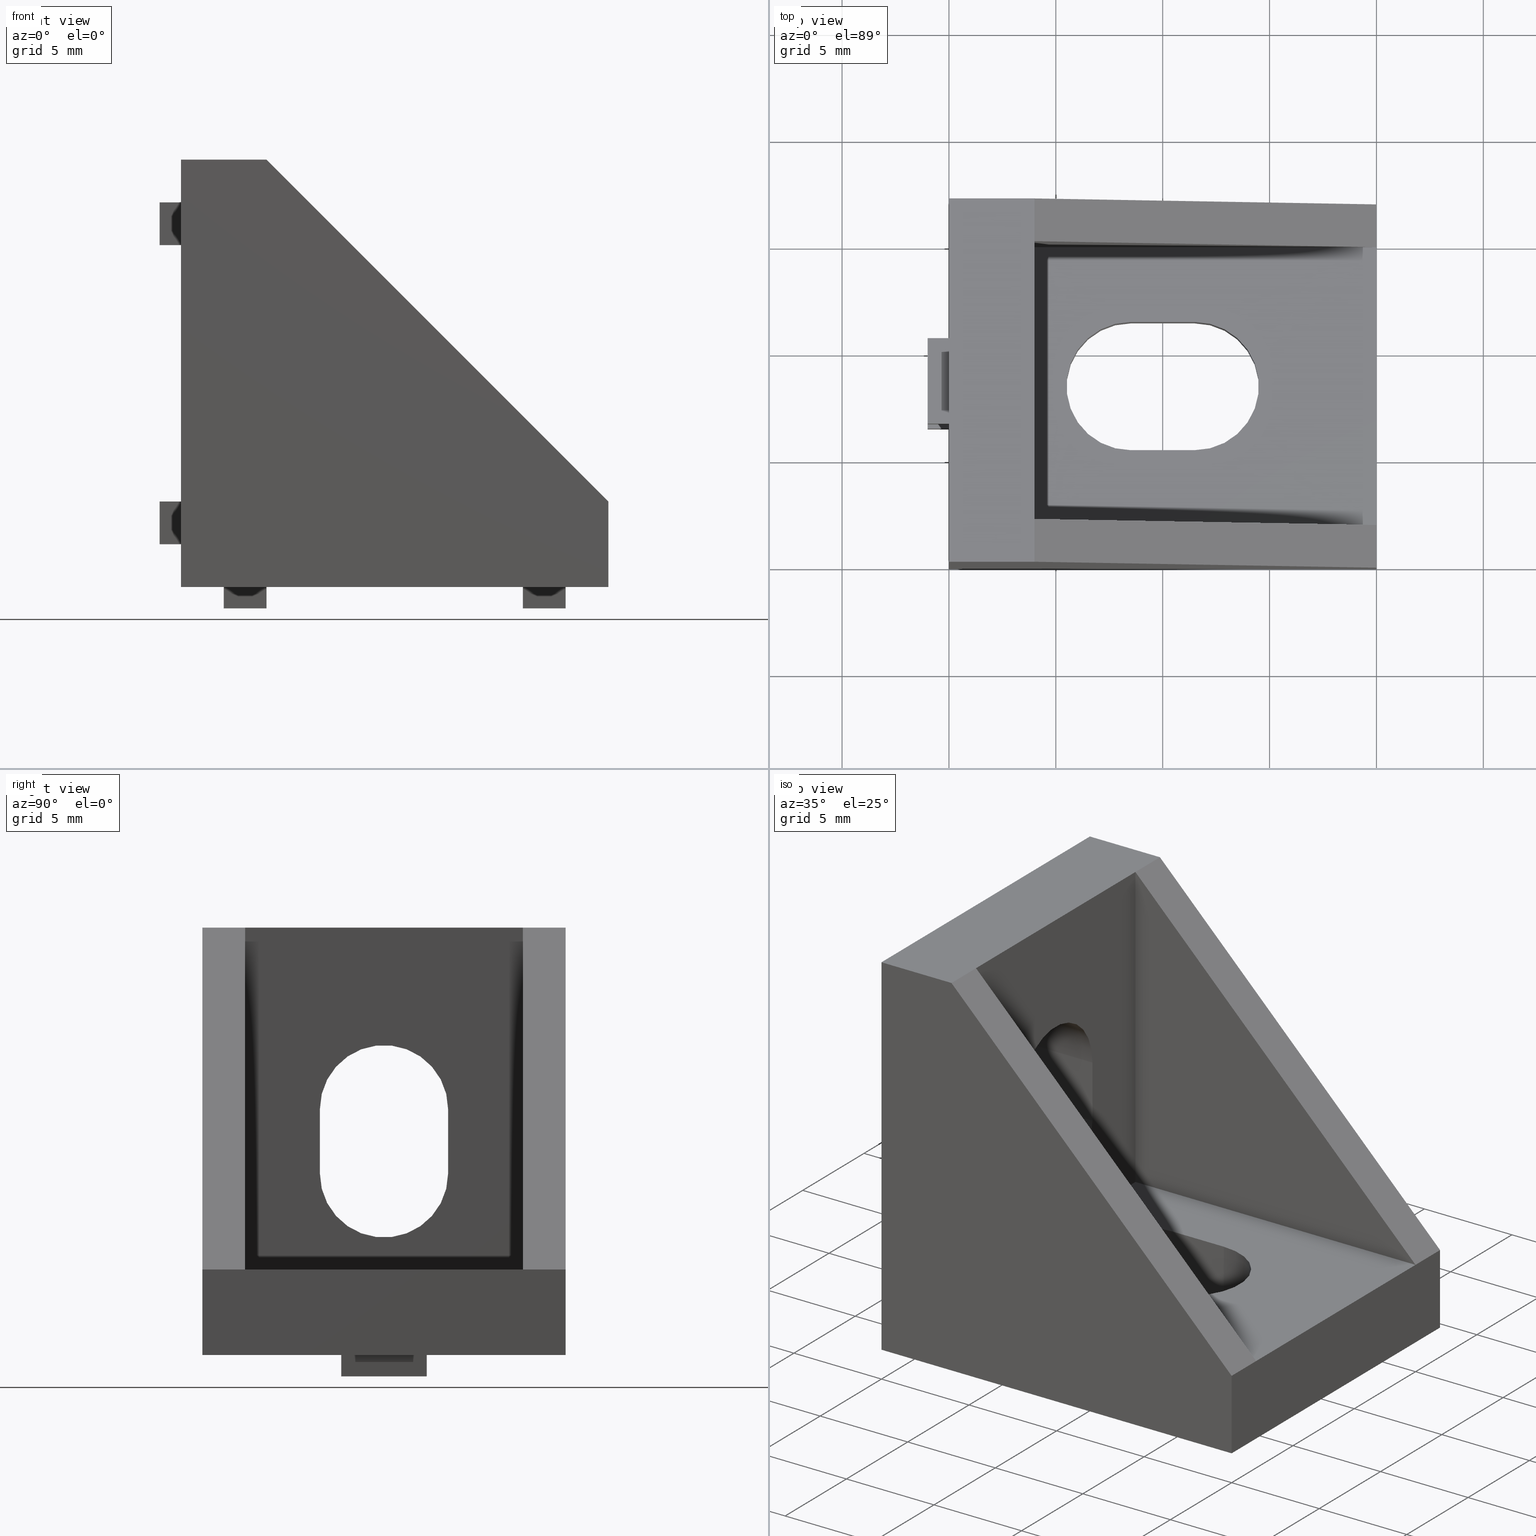
[diagram: canonical four-view strip — front | top / right | iso, engineering-drawing reading convention]
A machine part, canonical four-view strip (front | top / right | iso — engineering-drawing reading convention). The complete STEP part file that produces these views, byte-faithful:
ISO-10303-21;
HEADER;
/* Generated by software containing ST-Developer
 * from STEP Tools, Inc. (www.steptools.com) 
 */

FILE_DESCRIPTION(
/* description */ (''),
/* implementation_level */ '2;1');

FILE_NAME(
/* name */ 'HBLFSN5.step',
/* time_stamp */ '2024-09-27T19:36:49+02:00',
/* author */ (''),
/* organization */ (''),
/* preprocessor_version */ 'ST-DEVELOPER v20',
/* originating_system */ 'Autodesk Translation Framework v13.20.0.188',

/* authorisation */ '');

FILE_SCHEMA (('AUTOMOTIVE_DESIGN { 1 0 10303 214 3 1 1 }'));
ENDSEC;

DATA;
#10=MECHANICAL_DESIGN_GEOMETRIC_PRESENTATION_REPRESENTATION('',(#13),#1193);
#11=SHAPE_REPRESENTATION_RELATIONSHIP('SRR','None',#1200,#12);
#12=ADVANCED_BREP_SHAPE_REPRESENTATION('',(#14),#1192);
#13=STYLED_ITEM('',(#1209),#14);
#14=MANIFOLD_SOLID_BREP('Body1',#737);
#15=FACE_BOUND('',#106,.T.);
#16=FACE_BOUND('',#110,.T.);
#17=FACE_BOUND('',#112,.T.);
#18=FACE_BOUND('',#113,.T.);
#19=FACE_BOUND('',#114,.T.);
#20=FACE_BOUND('',#118,.T.);
#21=FACE_BOUND('',#119,.T.);
#22=FACE_BOUND('',#120,.T.);
#23=CIRCLE('',#772,3.);
#24=CIRCLE('',#773,3.);
#25=CIRCLE('',#776,3.);
#26=CIRCLE('',#777,3.);
#27=CIRCLE('',#780,3.);
#28=CIRCLE('',#781,3.);
#29=CIRCLE('',#784,3.);
#30=CIRCLE('',#785,3.);
#31=CYLINDRICAL_SURFACE('',#771,3.);
#32=CYLINDRICAL_SURFACE('',#775,3.);
#33=CYLINDRICAL_SURFACE('',#779,3.);
#34=CYLINDRICAL_SURFACE('',#783,3.);
#35=FACE_OUTER_BOUND('',#75,.T.);
#36=FACE_OUTER_BOUND('',#76,.T.);
#37=FACE_OUTER_BOUND('',#77,.T.);
#38=FACE_OUTER_BOUND('',#78,.T.);
#39=FACE_OUTER_BOUND('',#79,.T.);
#40=FACE_OUTER_BOUND('',#80,.T.);
#41=FACE_OUTER_BOUND('',#81,.T.);
#42=FACE_OUTER_BOUND('',#82,.T.);
#43=FACE_OUTER_BOUND('',#83,.T.);
#44=FACE_OUTER_BOUND('',#84,.T.);
#45=FACE_OUTER_BOUND('',#85,.T.);
#46=FACE_OUTER_BOUND('',#86,.T.);
#47=FACE_OUTER_BOUND('',#87,.T.);
#48=FACE_OUTER_BOUND('',#88,.T.);
#49=FACE_OUTER_BOUND('',#89,.T.);
#50=FACE_OUTER_BOUND('',#90,.T.);
#51=FACE_OUTER_BOUND('',#91,.T.);
#52=FACE_OUTER_BOUND('',#92,.T.);
#53=FACE_OUTER_BOUND('',#93,.T.);
#54=FACE_OUTER_BOUND('',#94,.T.);
#55=FACE_OUTER_BOUND('',#95,.T.);
#56=FACE_OUTER_BOUND('',#96,.T.);
#57=FACE_OUTER_BOUND('',#97,.T.);
#58=FACE_OUTER_BOUND('',#98,.T.);
#59=FACE_OUTER_BOUND('',#99,.T.);
#60=FACE_OUTER_BOUND('',#100,.T.);
#61=FACE_OUTER_BOUND('',#101,.T.);
#62=FACE_OUTER_BOUND('',#102,.T.);
#63=FACE_OUTER_BOUND('',#103,.T.);
#64=FACE_OUTER_BOUND('',#104,.T.);
#65=FACE_OUTER_BOUND('',#105,.T.);
#66=FACE_OUTER_BOUND('',#107,.T.);
#67=FACE_OUTER_BOUND('',#108,.T.);
#68=FACE_OUTER_BOUND('',#109,.T.);
#69=FACE_OUTER_BOUND('',#111,.T.);
#70=FACE_OUTER_BOUND('',#115,.T.);
#71=FACE_OUTER_BOUND('',#116,.T.);
#72=FACE_OUTER_BOUND('',#117,.T.);
#73=FACE_OUTER_BOUND('',#121,.T.);
#74=FACE_OUTER_BOUND('',#122,.T.);
#75=EDGE_LOOP('',(#465,#466,#467,#468));
#76=EDGE_LOOP('',(#469,#470,#471,#472));
#77=EDGE_LOOP('',(#473,#474,#475,#476));
#78=EDGE_LOOP('',(#477,#478,#479,#480));
#79=EDGE_LOOP('',(#481,#482,#483,#484));
#80=EDGE_LOOP('',(#485,#486,#487,#488));
#81=EDGE_LOOP('',(#489,#490,#491,#492));
#82=EDGE_LOOP('',(#493,#494,#495,#496));
#83=EDGE_LOOP('',(#497,#498,#499,#500));
#84=EDGE_LOOP('',(#501,#502,#503,#504));
#85=EDGE_LOOP('',(#505,#506,#507,#508));
#86=EDGE_LOOP('',(#509,#510,#511,#512));
#87=EDGE_LOOP('',(#513,#514,#515,#516));
#88=EDGE_LOOP('',(#517,#518,#519,#520));
#89=EDGE_LOOP('',(#521,#522,#523,#524));
#90=EDGE_LOOP('',(#525,#526,#527,#528));
#91=EDGE_LOOP('',(#529,#530,#531,#532));
#92=EDGE_LOOP('',(#533,#534,#535,#536));
#93=EDGE_LOOP('',(#537,#538,#539,#540));
#94=EDGE_LOOP('',(#541,#542,#543,#544));
#95=EDGE_LOOP('',(#545,#546,#547,#548));
#96=EDGE_LOOP('',(#549,#550,#551,#552));
#97=EDGE_LOOP('',(#553,#554,#555,#556));
#98=EDGE_LOOP('',(#557,#558,#559,#560));
#99=EDGE_LOOP('',(#561,#562,#563,#564));
#100=EDGE_LOOP('',(#565,#566,#567,#568));
#101=EDGE_LOOP('',(#569,#570,#571,#572));
#102=EDGE_LOOP('',(#573,#574,#575,#576));
#103=EDGE_LOOP('',(#577,#578,#579,#580));
#104=EDGE_LOOP('',(#581,#582,#583));
#105=EDGE_LOOP('',(#584,#585,#586,#587));
#106=EDGE_LOOP('',(#588,#589,#590,#591));
#107=EDGE_LOOP('',(#592,#593,#594,#595));
#108=EDGE_LOOP('',(#596,#597,#598));
#109=EDGE_LOOP('',(#599,#600,#601,#602));
#110=EDGE_LOOP('',(#603,#604,#605,#606));
#111=EDGE_LOOP('',(#607,#608,#609,#610));
#112=EDGE_LOOP('',(#611,#612,#613,#614));
#113=EDGE_LOOP('',(#615,#616,#617,#618));
#114=EDGE_LOOP('',(#619,#620,#621,#622));
#115=EDGE_LOOP('',(#623,#624,#625,#626,#627,#628));
#116=EDGE_LOOP('',(#629,#630,#631,#632,#633,#634));
#117=EDGE_LOOP('',(#635,#636,#637,#638));
#118=EDGE_LOOP('',(#639,#640,#641,#642));
#119=EDGE_LOOP('',(#643,#644,#645,#646));
#120=EDGE_LOOP('',(#647,#648,#649,#650));
#121=EDGE_LOOP('',(#651,#652,#653,#654,#655));
#122=EDGE_LOOP('',(#656,#657,#658,#659,#660));
#123=LINE('',#991,#213);
#124=LINE('',#993,#214);
#125=LINE('',#995,#215);
#126=LINE('',#996,#216);
#127=LINE('',#1000,#217);
#128=LINE('',#1002,#218);
#129=LINE('',#1004,#219);
#130=LINE('',#1005,#220);
#131=LINE('',#1007,#221);
#132=LINE('',#1008,#222);
#133=LINE('',#1010,#223);
#134=LINE('',#1012,#224);
#135=LINE('',#1016,#225);
#136=LINE('',#1018,#226);
#137=LINE('',#1020,#227);
#138=LINE('',#1021,#228);
#139=LINE('',#1025,#229);
#140=LINE('',#1027,#230);
#141=LINE('',#1029,#231);
#142=LINE('',#1030,#232);
#143=LINE('',#1032,#233);
#144=LINE('',#1033,#234);
#145=LINE('',#1035,#235);
#146=LINE('',#1037,#236);
#147=LINE('',#1041,#237);
#148=LINE('',#1043,#238);
#149=LINE('',#1045,#239);
#150=LINE('',#1046,#240);
#151=LINE('',#1050,#241);
#152=LINE('',#1052,#242);
#153=LINE('',#1054,#243);
#154=LINE('',#1055,#244);
#155=LINE('',#1057,#245);
#156=LINE('',#1058,#246);
#157=LINE('',#1060,#247);
#158=LINE('',#1062,#248);
#159=LINE('',#1066,#249);
#160=LINE('',#1068,#250);
#161=LINE('',#1070,#251);
#162=LINE('',#1071,#252);
#163=LINE('',#1075,#253);
#164=LINE('',#1077,#254);
#165=LINE('',#1079,#255);
#166=LINE('',#1080,#256);
#167=LINE('',#1082,#257);
#168=LINE('',#1083,#258);
#169=LINE('',#1085,#259);
#170=LINE('',#1087,#260);
#171=LINE('',#1093,#261);
#172=LINE('',#1096,#262);
#173=LINE('',#1099,#263);
#174=LINE('',#1101,#264);
#175=LINE('',#1102,#265);
#176=LINE('',#1108,#266);
#177=LINE('',#1110,#267);
#178=LINE('',#1111,#268);
#179=LINE('',#1117,#269);
#180=LINE('',#1120,#270);
#181=LINE('',#1123,#271);
#182=LINE('',#1125,#272);
#183=LINE('',#1126,#273);
#184=LINE('',#1131,#274);
#185=LINE('',#1134,#275);
#186=LINE('',#1135,#276);
#187=LINE('',#1139,#277);
#188=LINE('',#1141,#278);
#189=LINE('',#1143,#279);
#190=LINE('',#1144,#280);
#191=LINE('',#1147,#281);
#192=LINE('',#1148,#282);
#193=LINE('',#1151,#283);
#194=LINE('',#1153,#284);
#195=LINE('',#1154,#285);
#196=LINE('',#1158,#286);
#197=LINE('',#1159,#287);
#198=LINE('',#1161,#288);
#199=LINE('',#1162,#289);
#200=LINE('',#1164,#290);
#201=LINE('',#1166,#291);
#202=LINE('',#1170,#292);
#203=LINE('',#1172,#293);
#204=LINE('',#1174,#294);
#205=LINE('',#1175,#295);
#206=LINE('',#1177,#296);
#207=LINE('',#1178,#297);
#208=LINE('',#1181,#298);
#209=LINE('',#1183,#299);
#210=LINE('',#1184,#300);
#211=LINE('',#1186,#301);
#212=LINE('',#1187,#302);
#213=VECTOR('',#803,10.);
#214=VECTOR('',#804,10.);
#215=VECTOR('',#805,10.);
#216=VECTOR('',#806,10.);
#217=VECTOR('',#809,10.);
#218=VECTOR('',#810,10.);
#219=VECTOR('',#811,10.);
#220=VECTOR('',#812,10.);
#221=VECTOR('',#815,10.);
#222=VECTOR('',#816,10.);
#223=VECTOR('',#819,10.);
#224=VECTOR('',#822,10.);
#225=VECTOR('',#825,10.);
#226=VECTOR('',#826,10.);
#227=VECTOR('',#827,10.);
#228=VECTOR('',#828,10.);
#229=VECTOR('',#831,10.);
#230=VECTOR('',#832,10.);
#231=VECTOR('',#833,10.);
#232=VECTOR('',#834,10.);
#233=VECTOR('',#837,10.);
#234=VECTOR('',#838,10.);
#235=VECTOR('',#841,10.);
#236=VECTOR('',#844,10.);
#237=VECTOR('',#847,10.);
#238=VECTOR('',#848,10.);
#239=VECTOR('',#849,10.);
#240=VECTOR('',#850,10.);
#241=VECTOR('',#853,10.);
#242=VECTOR('',#854,10.);
#243=VECTOR('',#855,10.);
#244=VECTOR('',#856,10.);
#245=VECTOR('',#859,10.);
#246=VECTOR('',#860,10.);
#247=VECTOR('',#863,10.);
#248=VECTOR('',#866,10.);
#249=VECTOR('',#869,10.);
#250=VECTOR('',#870,10.);
#251=VECTOR('',#871,10.);
#252=VECTOR('',#872,10.);
#253=VECTOR('',#875,10.);
#254=VECTOR('',#876,10.);
#255=VECTOR('',#877,10.);
#256=VECTOR('',#878,10.);
#257=VECTOR('',#881,10.);
#258=VECTOR('',#882,10.);
#259=VECTOR('',#885,10.);
#260=VECTOR('',#888,10.);
#261=VECTOR('',#893,10.);
#262=VECTOR('',#896,10.);
#263=VECTOR('',#899,10.);
#264=VECTOR('',#900,10.);
#265=VECTOR('',#901,10.);
#266=VECTOR('',#908,10.);
#267=VECTOR('',#911,10.);
#268=VECTOR('',#912,10.);
#269=VECTOR('',#917,10.);
#270=VECTOR('',#920,10.);
#271=VECTOR('',#923,10.);
#272=VECTOR('',#924,10.);
#273=VECTOR('',#925,10.);
#274=VECTOR('',#930,10.);
#275=VECTOR('',#935,10.);
#276=VECTOR('',#936,10.);
#277=VECTOR('',#939,10.);
#278=VECTOR('',#940,10.);
#279=VECTOR('',#941,10.);
#280=VECTOR('',#942,10.);
#281=VECTOR('',#945,10.);
#282=VECTOR('',#946,10.);
#283=VECTOR('',#949,10.);
#284=VECTOR('',#950,10.);
#285=VECTOR('',#951,10.);
#286=VECTOR('',#954,10.);
#287=VECTOR('',#955,10.);
#288=VECTOR('',#956,10.);
#289=VECTOR('',#957,10.);
#290=VECTOR('',#960,10.);
#291=VECTOR('',#963,10.);
#292=VECTOR('',#966,10.);
#293=VECTOR('',#967,10.);
#294=VECTOR('',#968,10.);
#295=VECTOR('',#969,10.);
#296=VECTOR('',#972,10.);
#297=VECTOR('',#973,10.);
#298=VECTOR('',#976,10.);
#299=VECTOR('',#977,10.);
#300=VECTOR('',#978,10.);
#301=VECTOR('',#981,10.);
#302=VECTOR('',#982,10.);
#303=VERTEX_POINT('',#989);
#304=VERTEX_POINT('',#990);
#305=VERTEX_POINT('',#992);
#306=VERTEX_POINT('',#994);
#307=VERTEX_POINT('',#998);
#308=VERTEX_POINT('',#999);
#309=VERTEX_POINT('',#1001);
#310=VERTEX_POINT('',#1003);
#311=VERTEX_POINT('',#1014);
#312=VERTEX_POINT('',#1015);
#313=VERTEX_POINT('',#1017);
#314=VERTEX_POINT('',#1019);
#315=VERTEX_POINT('',#1023);
#316=VERTEX_POINT('',#1024);
#317=VERTEX_POINT('',#1026);
#318=VERTEX_POINT('',#1028);
#319=VERTEX_POINT('',#1039);
#320=VERTEX_POINT('',#1040);
#321=VERTEX_POINT('',#1042);
#322=VERTEX_POINT('',#1044);
#323=VERTEX_POINT('',#1048);
#324=VERTEX_POINT('',#1049);
#325=VERTEX_POINT('',#1051);
#326=VERTEX_POINT('',#1053);
#327=VERTEX_POINT('',#1064);
#328=VERTEX_POINT('',#1065);
#329=VERTEX_POINT('',#1067);
#330=VERTEX_POINT('',#1069);
#331=VERTEX_POINT('',#1073);
#332=VERTEX_POINT('',#1074);
#333=VERTEX_POINT('',#1076);
#334=VERTEX_POINT('',#1078);
#335=VERTEX_POINT('',#1089);
#336=VERTEX_POINT('',#1090);
#337=VERTEX_POINT('',#1092);
#338=VERTEX_POINT('',#1094);
#339=VERTEX_POINT('',#1098);
#340=VERTEX_POINT('',#1100);
#341=VERTEX_POINT('',#1104);
#342=VERTEX_POINT('',#1106);
#343=VERTEX_POINT('',#1113);
#344=VERTEX_POINT('',#1114);
#345=VERTEX_POINT('',#1116);
#346=VERTEX_POINT('',#1118);
#347=VERTEX_POINT('',#1122);
#348=VERTEX_POINT('',#1124);
#349=VERTEX_POINT('',#1128);
#350=VERTEX_POINT('',#1130);
#351=VERTEX_POINT('',#1137);
#352=VERTEX_POINT('',#1138);
#353=VERTEX_POINT('',#1140);
#354=VERTEX_POINT('',#1142);
#355=VERTEX_POINT('',#1146);
#356=VERTEX_POINT('',#1150);
#357=VERTEX_POINT('',#1152);
#358=VERTEX_POINT('',#1156);
#359=VERTEX_POINT('',#1157);
#360=VERTEX_POINT('',#1160);
#361=VERTEX_POINT('',#1168);
#362=VERTEX_POINT('',#1169);
#363=VERTEX_POINT('',#1171);
#364=VERTEX_POINT('',#1173);
#365=VERTEX_POINT('',#1180);
#366=VERTEX_POINT('',#1182);
#367=EDGE_CURVE('',#303,#304,#123,.T.);
#368=EDGE_CURVE('',#303,#305,#124,.T.);
#369=EDGE_CURVE('',#306,#305,#125,.T.);
#370=EDGE_CURVE('',#304,#306,#126,.T.);
#371=EDGE_CURVE('',#307,#308,#127,.T.);
#372=EDGE_CURVE('',#309,#307,#128,.T.);
#373=EDGE_CURVE('',#310,#309,#129,.T.);
#374=EDGE_CURVE('',#308,#310,#130,.T.);
#375=EDGE_CURVE('',#308,#303,#131,.T.);
#376=EDGE_CURVE('',#305,#310,#132,.T.);
#377=EDGE_CURVE('',#307,#304,#133,.T.);
#378=EDGE_CURVE('',#306,#309,#134,.T.);
#379=EDGE_CURVE('',#311,#312,#135,.T.);
#380=EDGE_CURVE('',#311,#313,#136,.T.);
#381=EDGE_CURVE('',#314,#313,#137,.T.);
#382=EDGE_CURVE('',#312,#314,#138,.T.);
#383=EDGE_CURVE('',#315,#316,#139,.T.);
#384=EDGE_CURVE('',#317,#315,#140,.T.);
#385=EDGE_CURVE('',#318,#317,#141,.T.);
#386=EDGE_CURVE('',#316,#318,#142,.T.);
#387=EDGE_CURVE('',#316,#311,#143,.T.);
#388=EDGE_CURVE('',#313,#318,#144,.T.);
#389=EDGE_CURVE('',#315,#312,#145,.T.);
#390=EDGE_CURVE('',#314,#317,#146,.T.);
#391=EDGE_CURVE('',#319,#320,#147,.T.);
#392=EDGE_CURVE('',#319,#321,#148,.T.);
#393=EDGE_CURVE('',#322,#321,#149,.T.);
#394=EDGE_CURVE('',#320,#322,#150,.T.);
#395=EDGE_CURVE('',#323,#324,#151,.T.);
#396=EDGE_CURVE('',#325,#323,#152,.T.);
#397=EDGE_CURVE('',#326,#325,#153,.T.);
#398=EDGE_CURVE('',#324,#326,#154,.T.);
#399=EDGE_CURVE('',#324,#319,#155,.T.);
#400=EDGE_CURVE('',#321,#326,#156,.T.);
#401=EDGE_CURVE('',#323,#320,#157,.T.);
#402=EDGE_CURVE('',#322,#325,#158,.T.);
#403=EDGE_CURVE('',#327,#328,#159,.T.);
#404=EDGE_CURVE('',#327,#329,#160,.T.);
#405=EDGE_CURVE('',#330,#329,#161,.T.);
#406=EDGE_CURVE('',#328,#330,#162,.T.);
#407=EDGE_CURVE('',#331,#332,#163,.T.);
#408=EDGE_CURVE('',#333,#331,#164,.T.);
#409=EDGE_CURVE('',#334,#333,#165,.T.);
#410=EDGE_CURVE('',#332,#334,#166,.T.);
#411=EDGE_CURVE('',#332,#327,#167,.T.);
#412=EDGE_CURVE('',#329,#334,#168,.T.);
#413=EDGE_CURVE('',#331,#328,#169,.T.);
#414=EDGE_CURVE('',#330,#333,#170,.T.);
#415=EDGE_CURVE('',#335,#336,#23,.T.);
#416=EDGE_CURVE('',#337,#335,#171,.T.);
#417=EDGE_CURVE('',#338,#337,#24,.T.);
#418=EDGE_CURVE('',#338,#336,#172,.T.);
#419=EDGE_CURVE('',#336,#339,#173,.T.);
#420=EDGE_CURVE('',#340,#338,#174,.T.);
#421=EDGE_CURVE('',#340,#339,#175,.T.);
#422=EDGE_CURVE('',#339,#341,#25,.T.);
#423=EDGE_CURVE('',#342,#340,#26,.T.);
#424=EDGE_CURVE('',#342,#341,#176,.T.);
#425=EDGE_CURVE('',#341,#335,#177,.T.);
#426=EDGE_CURVE('',#337,#342,#178,.T.);
#427=EDGE_CURVE('',#343,#344,#27,.T.);
#428=EDGE_CURVE('',#343,#345,#179,.T.);
#429=EDGE_CURVE('',#346,#345,#28,.T.);
#430=EDGE_CURVE('',#344,#346,#180,.T.);
#431=EDGE_CURVE('',#347,#343,#181,.T.);
#432=EDGE_CURVE('',#347,#348,#182,.T.);
#433=EDGE_CURVE('',#345,#348,#183,.T.);
#434=EDGE_CURVE('',#349,#347,#29,.T.);
#435=EDGE_CURVE('',#349,#350,#184,.T.);
#436=EDGE_CURVE('',#348,#350,#30,.T.);
#437=EDGE_CURVE('',#344,#349,#185,.T.);
#438=EDGE_CURVE('',#350,#346,#186,.T.);
#439=EDGE_CURVE('',#351,#352,#187,.T.);
#440=EDGE_CURVE('',#353,#352,#188,.T.);
#441=EDGE_CURVE('',#354,#353,#189,.T.);
#442=EDGE_CURVE('',#354,#351,#190,.T.);
#443=EDGE_CURVE('',#355,#353,#191,.T.);
#444=EDGE_CURVE('',#354,#355,#192,.T.);
#445=EDGE_CURVE('',#356,#355,#193,.T.);
#446=EDGE_CURVE('',#356,#357,#194,.T.);
#447=EDGE_CURVE('',#357,#354,#195,.T.);
#448=EDGE_CURVE('',#358,#359,#196,.T.);
#449=EDGE_CURVE('',#359,#357,#197,.T.);
#450=EDGE_CURVE('',#360,#357,#198,.T.);
#451=EDGE_CURVE('',#358,#360,#199,.T.);
#452=EDGE_CURVE('',#360,#356,#200,.T.);
#453=EDGE_CURVE('',#360,#353,#201,.T.);
#454=EDGE_CURVE('',#361,#362,#202,.T.);
#455=EDGE_CURVE('',#361,#363,#203,.T.);
#456=EDGE_CURVE('',#364,#363,#204,.T.);
#457=EDGE_CURVE('',#362,#364,#205,.T.);
#458=EDGE_CURVE('',#362,#359,#206,.T.);
#459=EDGE_CURVE('',#351,#364,#207,.T.);
#460=EDGE_CURVE('',#358,#365,#208,.T.);
#461=EDGE_CURVE('',#366,#352,#209,.T.);
#462=EDGE_CURVE('',#365,#366,#210,.T.);
#463=EDGE_CURVE('',#365,#361,#211,.T.);
#464=EDGE_CURVE('',#363,#366,#212,.T.);
#465=ORIENTED_EDGE('',*,*,#367,.F.);
#466=ORIENTED_EDGE('',*,*,#368,.T.);
#467=ORIENTED_EDGE('',*,*,#369,.F.);
#468=ORIENTED_EDGE('',*,*,#370,.F.);
#469=ORIENTED_EDGE('',*,*,#371,.F.);
#470=ORIENTED_EDGE('',*,*,#372,.F.);
#471=ORIENTED_EDGE('',*,*,#373,.F.);
#472=ORIENTED_EDGE('',*,*,#374,.F.);
#473=ORIENTED_EDGE('',*,*,#375,.F.);
#474=ORIENTED_EDGE('',*,*,#374,.T.);
#475=ORIENTED_EDGE('',*,*,#376,.F.);
#476=ORIENTED_EDGE('',*,*,#368,.F.);
#477=ORIENTED_EDGE('',*,*,#375,.T.);
#478=ORIENTED_EDGE('',*,*,#367,.T.);
#479=ORIENTED_EDGE('',*,*,#377,.F.);
#480=ORIENTED_EDGE('',*,*,#371,.T.);
#481=ORIENTED_EDGE('',*,*,#376,.T.);
#482=ORIENTED_EDGE('',*,*,#373,.T.);
#483=ORIENTED_EDGE('',*,*,#378,.F.);
#484=ORIENTED_EDGE('',*,*,#369,.T.);
#485=ORIENTED_EDGE('',*,*,#379,.F.);
#486=ORIENTED_EDGE('',*,*,#380,.T.);
#487=ORIENTED_EDGE('',*,*,#381,.F.);
#488=ORIENTED_EDGE('',*,*,#382,.F.);
#489=ORIENTED_EDGE('',*,*,#383,.F.);
#490=ORIENTED_EDGE('',*,*,#384,.F.);
#491=ORIENTED_EDGE('',*,*,#385,.F.);
#492=ORIENTED_EDGE('',*,*,#386,.F.);
#493=ORIENTED_EDGE('',*,*,#387,.F.);
#494=ORIENTED_EDGE('',*,*,#386,.T.);
#495=ORIENTED_EDGE('',*,*,#388,.F.);
#496=ORIENTED_EDGE('',*,*,#380,.F.);
#497=ORIENTED_EDGE('',*,*,#387,.T.);
#498=ORIENTED_EDGE('',*,*,#379,.T.);
#499=ORIENTED_EDGE('',*,*,#389,.F.);
#500=ORIENTED_EDGE('',*,*,#383,.T.);
#501=ORIENTED_EDGE('',*,*,#388,.T.);
#502=ORIENTED_EDGE('',*,*,#385,.T.);
#503=ORIENTED_EDGE('',*,*,#390,.F.);
#504=ORIENTED_EDGE('',*,*,#381,.T.);
#505=ORIENTED_EDGE('',*,*,#391,.F.);
#506=ORIENTED_EDGE('',*,*,#392,.T.);
#507=ORIENTED_EDGE('',*,*,#393,.F.);
#508=ORIENTED_EDGE('',*,*,#394,.F.);
#509=ORIENTED_EDGE('',*,*,#395,.F.);
#510=ORIENTED_EDGE('',*,*,#396,.F.);
#511=ORIENTED_EDGE('',*,*,#397,.F.);
#512=ORIENTED_EDGE('',*,*,#398,.F.);
#513=ORIENTED_EDGE('',*,*,#399,.F.);
#514=ORIENTED_EDGE('',*,*,#398,.T.);
#515=ORIENTED_EDGE('',*,*,#400,.F.);
#516=ORIENTED_EDGE('',*,*,#392,.F.);
#517=ORIENTED_EDGE('',*,*,#399,.T.);
#518=ORIENTED_EDGE('',*,*,#391,.T.);
#519=ORIENTED_EDGE('',*,*,#401,.F.);
#520=ORIENTED_EDGE('',*,*,#395,.T.);
#521=ORIENTED_EDGE('',*,*,#400,.T.);
#522=ORIENTED_EDGE('',*,*,#397,.T.);
#523=ORIENTED_EDGE('',*,*,#402,.F.);
#524=ORIENTED_EDGE('',*,*,#393,.T.);
#525=ORIENTED_EDGE('',*,*,#403,.F.);
#526=ORIENTED_EDGE('',*,*,#404,.T.);
#527=ORIENTED_EDGE('',*,*,#405,.F.);
#528=ORIENTED_EDGE('',*,*,#406,.F.);
#529=ORIENTED_EDGE('',*,*,#407,.F.);
#530=ORIENTED_EDGE('',*,*,#408,.F.);
#531=ORIENTED_EDGE('',*,*,#409,.F.);
#532=ORIENTED_EDGE('',*,*,#410,.F.);
#533=ORIENTED_EDGE('',*,*,#411,.F.);
#534=ORIENTED_EDGE('',*,*,#410,.T.);
#535=ORIENTED_EDGE('',*,*,#412,.F.);
#536=ORIENTED_EDGE('',*,*,#404,.F.);
#537=ORIENTED_EDGE('',*,*,#411,.T.);
#538=ORIENTED_EDGE('',*,*,#403,.T.);
#539=ORIENTED_EDGE('',*,*,#413,.F.);
#540=ORIENTED_EDGE('',*,*,#407,.T.);
#541=ORIENTED_EDGE('',*,*,#412,.T.);
#542=ORIENTED_EDGE('',*,*,#409,.T.);
#543=ORIENTED_EDGE('',*,*,#414,.F.);
#544=ORIENTED_EDGE('',*,*,#405,.T.);
#545=ORIENTED_EDGE('',*,*,#415,.F.);
#546=ORIENTED_EDGE('',*,*,#416,.F.);
#547=ORIENTED_EDGE('',*,*,#417,.F.);
#548=ORIENTED_EDGE('',*,*,#418,.T.);
#549=ORIENTED_EDGE('',*,*,#419,.F.);
#550=ORIENTED_EDGE('',*,*,#418,.F.);
#551=ORIENTED_EDGE('',*,*,#420,.F.);
#552=ORIENTED_EDGE('',*,*,#421,.T.);
#553=ORIENTED_EDGE('',*,*,#422,.F.);
#554=ORIENTED_EDGE('',*,*,#421,.F.);
#555=ORIENTED_EDGE('',*,*,#423,.F.);
#556=ORIENTED_EDGE('',*,*,#424,.T.);
#557=ORIENTED_EDGE('',*,*,#425,.F.);
#558=ORIENTED_EDGE('',*,*,#424,.F.);
#559=ORIENTED_EDGE('',*,*,#426,.F.);
#560=ORIENTED_EDGE('',*,*,#416,.T.);
#561=ORIENTED_EDGE('',*,*,#427,.F.);
#562=ORIENTED_EDGE('',*,*,#428,.T.);
#563=ORIENTED_EDGE('',*,*,#429,.F.);
#564=ORIENTED_EDGE('',*,*,#430,.F.);
#565=ORIENTED_EDGE('',*,*,#431,.F.);
#566=ORIENTED_EDGE('',*,*,#432,.T.);
#567=ORIENTED_EDGE('',*,*,#433,.F.);
#568=ORIENTED_EDGE('',*,*,#428,.F.);
#569=ORIENTED_EDGE('',*,*,#434,.F.);
#570=ORIENTED_EDGE('',*,*,#435,.T.);
#571=ORIENTED_EDGE('',*,*,#436,.F.);
#572=ORIENTED_EDGE('',*,*,#432,.F.);
#573=ORIENTED_EDGE('',*,*,#437,.F.);
#574=ORIENTED_EDGE('',*,*,#430,.T.);
#575=ORIENTED_EDGE('',*,*,#438,.F.);
#576=ORIENTED_EDGE('',*,*,#435,.F.);
#577=ORIENTED_EDGE('',*,*,#439,.T.);
#578=ORIENTED_EDGE('',*,*,#440,.F.);
#579=ORIENTED_EDGE('',*,*,#441,.F.);
#580=ORIENTED_EDGE('',*,*,#442,.T.);
#581=ORIENTED_EDGE('',*,*,#443,.F.);
#582=ORIENTED_EDGE('',*,*,#444,.F.);
#583=ORIENTED_EDGE('',*,*,#441,.T.);
#584=ORIENTED_EDGE('',*,*,#444,.T.);
#585=ORIENTED_EDGE('',*,*,#445,.F.);
#586=ORIENTED_EDGE('',*,*,#446,.T.);
#587=ORIENTED_EDGE('',*,*,#447,.T.);
#588=ORIENTED_EDGE('',*,*,#422,.T.);
#589=ORIENTED_EDGE('',*,*,#425,.T.);
#590=ORIENTED_EDGE('',*,*,#415,.T.);
#591=ORIENTED_EDGE('',*,*,#419,.T.);
#592=ORIENTED_EDGE('',*,*,#448,.T.);
#593=ORIENTED_EDGE('',*,*,#449,.T.);
#594=ORIENTED_EDGE('',*,*,#450,.F.);
#595=ORIENTED_EDGE('',*,*,#451,.F.);
#596=ORIENTED_EDGE('',*,*,#450,.T.);
#597=ORIENTED_EDGE('',*,*,#446,.F.);
#598=ORIENTED_EDGE('',*,*,#452,.F.);
#599=ORIENTED_EDGE('',*,*,#443,.T.);
#600=ORIENTED_EDGE('',*,*,#453,.F.);
#601=ORIENTED_EDGE('',*,*,#452,.T.);
#602=ORIENTED_EDGE('',*,*,#445,.T.);
#603=ORIENTED_EDGE('',*,*,#429,.T.);
#604=ORIENTED_EDGE('',*,*,#433,.T.);
#605=ORIENTED_EDGE('',*,*,#436,.T.);
#606=ORIENTED_EDGE('',*,*,#438,.T.);
#607=ORIENTED_EDGE('',*,*,#454,.F.);
#608=ORIENTED_EDGE('',*,*,#455,.T.);
#609=ORIENTED_EDGE('',*,*,#456,.F.);
#610=ORIENTED_EDGE('',*,*,#457,.F.);
#611=ORIENTED_EDGE('',*,*,#372,.T.);
#612=ORIENTED_EDGE('',*,*,#377,.T.);
#613=ORIENTED_EDGE('',*,*,#370,.T.);
#614=ORIENTED_EDGE('',*,*,#378,.T.);
#615=ORIENTED_EDGE('',*,*,#384,.T.);
#616=ORIENTED_EDGE('',*,*,#389,.T.);
#617=ORIENTED_EDGE('',*,*,#382,.T.);
#618=ORIENTED_EDGE('',*,*,#390,.T.);
#619=ORIENTED_EDGE('',*,*,#423,.T.);
#620=ORIENTED_EDGE('',*,*,#420,.T.);
#621=ORIENTED_EDGE('',*,*,#417,.T.);
#622=ORIENTED_EDGE('',*,*,#426,.T.);
#623=ORIENTED_EDGE('',*,*,#458,.F.);
#624=ORIENTED_EDGE('',*,*,#457,.T.);
#625=ORIENTED_EDGE('',*,*,#459,.F.);
#626=ORIENTED_EDGE('',*,*,#442,.F.);
#627=ORIENTED_EDGE('',*,*,#447,.F.);
#628=ORIENTED_EDGE('',*,*,#449,.F.);
#629=ORIENTED_EDGE('',*,*,#460,.F.);
#630=ORIENTED_EDGE('',*,*,#451,.T.);
#631=ORIENTED_EDGE('',*,*,#453,.T.);
#632=ORIENTED_EDGE('',*,*,#440,.T.);
#633=ORIENTED_EDGE('',*,*,#461,.F.);
#634=ORIENTED_EDGE('',*,*,#462,.F.);
#635=ORIENTED_EDGE('',*,*,#463,.F.);
#636=ORIENTED_EDGE('',*,*,#462,.T.);
#637=ORIENTED_EDGE('',*,*,#464,.F.);
#638=ORIENTED_EDGE('',*,*,#455,.F.);
#639=ORIENTED_EDGE('',*,*,#396,.T.);
#640=ORIENTED_EDGE('',*,*,#401,.T.);
#641=ORIENTED_EDGE('',*,*,#394,.T.);
#642=ORIENTED_EDGE('',*,*,#402,.T.);
#643=ORIENTED_EDGE('',*,*,#408,.T.);
#644=ORIENTED_EDGE('',*,*,#413,.T.);
#645=ORIENTED_EDGE('',*,*,#406,.T.);
#646=ORIENTED_EDGE('',*,*,#414,.T.);
#647=ORIENTED_EDGE('',*,*,#427,.T.);
#648=ORIENTED_EDGE('',*,*,#437,.T.);
#649=ORIENTED_EDGE('',*,*,#434,.T.);
#650=ORIENTED_EDGE('',*,*,#431,.T.);
#651=ORIENTED_EDGE('',*,*,#464,.T.);
#652=ORIENTED_EDGE('',*,*,#461,.T.);
#653=ORIENTED_EDGE('',*,*,#439,.F.);
#654=ORIENTED_EDGE('',*,*,#459,.T.);
#655=ORIENTED_EDGE('',*,*,#456,.T.);
#656=ORIENTED_EDGE('',*,*,#463,.T.);
#657=ORIENTED_EDGE('',*,*,#454,.T.);
#658=ORIENTED_EDGE('',*,*,#458,.T.);
#659=ORIENTED_EDGE('',*,*,#448,.F.);
#660=ORIENTED_EDGE('',*,*,#460,.T.);
#661=PLANE('',#751);
#662=PLANE('',#752);
#663=PLANE('',#753);
#664=PLANE('',#754);
#665=PLANE('',#755);
#666=PLANE('',#756);
#667=PLANE('',#757);
#668=PLANE('',#758);
#669=PLANE('',#759);
#670=PLANE('',#760);
#671=PLANE('',#761);
#672=PLANE('',#762);
#673=PLANE('',#763);
#674=PLANE('',#764);
#675=PLANE('',#765);
#676=PLANE('',#766);
#677=PLANE('',#767);
#678=PLANE('',#768);
#679=PLANE('',#769);
#680=PLANE('',#770);
#681=PLANE('',#774);
#682=PLANE('',#778);
#683=PLANE('',#782);
#684=PLANE('',#786);
#685=PLANE('',#787);
#686=PLANE('',#788);
#687=PLANE('',#789);
#688=PLANE('',#790);
#689=PLANE('',#791);
#690=PLANE('',#792);
#691=PLANE('',#793);
#692=PLANE('',#794);
#693=PLANE('',#795);
#694=PLANE('',#796);
#695=PLANE('',#797);
#696=PLANE('',#798);
#697=ADVANCED_FACE('',(#35),#661,.T.);
#698=ADVANCED_FACE('',(#36),#662,.T.);
#699=ADVANCED_FACE('',(#37),#663,.T.);
#700=ADVANCED_FACE('',(#38),#664,.T.);
#701=ADVANCED_FACE('',(#39),#665,.T.);
#702=ADVANCED_FACE('',(#40),#666,.T.);
#703=ADVANCED_FACE('',(#41),#667,.T.);
#704=ADVANCED_FACE('',(#42),#668,.T.);
#705=ADVANCED_FACE('',(#43),#669,.T.);
#706=ADVANCED_FACE('',(#44),#670,.T.);
#707=ADVANCED_FACE('',(#45),#671,.T.);
#708=ADVANCED_FACE('',(#46),#672,.T.);
#709=ADVANCED_FACE('',(#47),#673,.T.);
#710=ADVANCED_FACE('',(#48),#674,.T.);
#711=ADVANCED_FACE('',(#49),#675,.T.);
#712=ADVANCED_FACE('',(#50),#676,.T.);
#713=ADVANCED_FACE('',(#51),#677,.T.);
#714=ADVANCED_FACE('',(#52),#678,.T.);
#715=ADVANCED_FACE('',(#53),#679,.T.);
#716=ADVANCED_FACE('',(#54),#680,.T.);
#717=ADVANCED_FACE('',(#55),#31,.F.);
#718=ADVANCED_FACE('',(#56),#681,.F.);
#719=ADVANCED_FACE('',(#57),#32,.F.);
#720=ADVANCED_FACE('',(#58),#682,.F.);
#721=ADVANCED_FACE('',(#59),#33,.F.);
#722=ADVANCED_FACE('',(#60),#683,.F.);
#723=ADVANCED_FACE('',(#61),#34,.F.);
#724=ADVANCED_FACE('',(#62),#684,.F.);
#725=ADVANCED_FACE('',(#63),#685,.T.);
#726=ADVANCED_FACE('',(#64),#686,.T.);
#727=ADVANCED_FACE('',(#65,#15),#687,.T.);
#728=ADVANCED_FACE('',(#66),#688,.T.);
#729=ADVANCED_FACE('',(#67),#689,.T.);
#730=ADVANCED_FACE('',(#68,#16),#690,.T.);
#731=ADVANCED_FACE('',(#69,#17,#18,#19),#691,.T.);
#732=ADVANCED_FACE('',(#70),#692,.T.);
#733=ADVANCED_FACE('',(#71),#693,.T.);
#734=ADVANCED_FACE('',(#72,#20,#21,#22),#694,.T.);
#735=ADVANCED_FACE('',(#73),#695,.T.);
#736=ADVANCED_FACE('',(#74),#696,.F.);
#737=CLOSED_SHELL('',(#697,#698,#699,#700,#701,#702,#703,#704,#705,#706,
#707,#708,#709,#710,#711,#712,#713,#714,#715,#716,#717,#718,#719,#720,#721,
#722,#723,#724,#725,#726,#727,#728,#729,#730,#731,#732,#733,#734,#735,#736));
#738=DERIVED_UNIT_ELEMENT(#740,1.);
#739=DERIVED_UNIT_ELEMENT(#1195,-3.);
#740=(
MASS_UNIT()
NAMED_UNIT(*)
SI_UNIT(.KILO.,.GRAM.)
);
#741=DERIVED_UNIT((#738,#739));
#742=MEASURE_REPRESENTATION_ITEM('density measure',
POSITIVE_RATIO_MEASURE(7850.),#741);
#743=PROPERTY_DEFINITION_REPRESENTATION(#748,#745);
#744=PROPERTY_DEFINITION_REPRESENTATION(#749,#746);
#745=REPRESENTATION('material name',(#747),#1192);
#746=REPRESENTATION('density',(#742),#1192);
#747=DESCRIPTIVE_REPRESENTATION_ITEM('Steel','Steel');
#748=PROPERTY_DEFINITION('material property','material name',#1202);
#749=PROPERTY_DEFINITION('material property','density of part',#1202);
#750=AXIS2_PLACEMENT_3D('',#987,#799,#800);
#751=AXIS2_PLACEMENT_3D('',#988,#801,#802);
#752=AXIS2_PLACEMENT_3D('',#997,#807,#808);
#753=AXIS2_PLACEMENT_3D('',#1006,#813,#814);
#754=AXIS2_PLACEMENT_3D('',#1009,#817,#818);
#755=AXIS2_PLACEMENT_3D('',#1011,#820,#821);
#756=AXIS2_PLACEMENT_3D('',#1013,#823,#824);
#757=AXIS2_PLACEMENT_3D('',#1022,#829,#830);
#758=AXIS2_PLACEMENT_3D('',#1031,#835,#836);
#759=AXIS2_PLACEMENT_3D('',#1034,#839,#840);
#760=AXIS2_PLACEMENT_3D('',#1036,#842,#843);
#761=AXIS2_PLACEMENT_3D('',#1038,#845,#846);
#762=AXIS2_PLACEMENT_3D('',#1047,#851,#852);
#763=AXIS2_PLACEMENT_3D('',#1056,#857,#858);
#764=AXIS2_PLACEMENT_3D('',#1059,#861,#862);
#765=AXIS2_PLACEMENT_3D('',#1061,#864,#865);
#766=AXIS2_PLACEMENT_3D('',#1063,#867,#868);
#767=AXIS2_PLACEMENT_3D('',#1072,#873,#874);
#768=AXIS2_PLACEMENT_3D('',#1081,#879,#880);
#769=AXIS2_PLACEMENT_3D('',#1084,#883,#884);
#770=AXIS2_PLACEMENT_3D('',#1086,#886,#887);
#771=AXIS2_PLACEMENT_3D('',#1088,#889,#890);
#772=AXIS2_PLACEMENT_3D('',#1091,#891,#892);
#773=AXIS2_PLACEMENT_3D('',#1095,#894,#895);
#774=AXIS2_PLACEMENT_3D('',#1097,#897,#898);
#775=AXIS2_PLACEMENT_3D('',#1103,#902,#903);
#776=AXIS2_PLACEMENT_3D('',#1105,#904,#905);
#777=AXIS2_PLACEMENT_3D('',#1107,#906,#907);
#778=AXIS2_PLACEMENT_3D('',#1109,#909,#910);
#779=AXIS2_PLACEMENT_3D('',#1112,#913,#914);
#780=AXIS2_PLACEMENT_3D('',#1115,#915,#916);
#781=AXIS2_PLACEMENT_3D('',#1119,#918,#919);
#782=AXIS2_PLACEMENT_3D('',#1121,#921,#922);
#783=AXIS2_PLACEMENT_3D('',#1127,#926,#927);
#784=AXIS2_PLACEMENT_3D('',#1129,#928,#929);
#785=AXIS2_PLACEMENT_3D('',#1132,#931,#932);
#786=AXIS2_PLACEMENT_3D('',#1133,#933,#934);
#787=AXIS2_PLACEMENT_3D('',#1136,#937,#938);
#788=AXIS2_PLACEMENT_3D('',#1145,#943,#944);
#789=AXIS2_PLACEMENT_3D('',#1149,#947,#948);
#790=AXIS2_PLACEMENT_3D('',#1155,#952,#953);
#791=AXIS2_PLACEMENT_3D('',#1163,#958,#959);
#792=AXIS2_PLACEMENT_3D('',#1165,#961,#962);
#793=AXIS2_PLACEMENT_3D('',#1167,#964,#965);
#794=AXIS2_PLACEMENT_3D('',#1176,#970,#971);
#795=AXIS2_PLACEMENT_3D('',#1179,#974,#975);
#796=AXIS2_PLACEMENT_3D('',#1185,#979,#980);
#797=AXIS2_PLACEMENT_3D('',#1188,#983,#984);
#798=AXIS2_PLACEMENT_3D('',#1189,#985,#986);
#799=DIRECTION('axis',(0.,0.,1.));
#800=DIRECTION('refdir',(1.,0.,0.));
#801=DIRECTION('center_axis',(-2.46519032881566E-31,-1.,1.11022302462516E-15));
#802=DIRECTION('ref_axis',(2.22044604925031E-16,-1.11022302462516E-15,-1.));
#803=DIRECTION('',(-2.22044604925031E-16,1.11022302462516E-15,1.));
#804=DIRECTION('',(1.,0.,2.22044604925031E-16));
#805=DIRECTION('',(2.22044604925031E-16,-1.11022302462516E-15,-1.));
#806=DIRECTION('',(1.,-2.46519032881566E-31,0.));
#807=DIRECTION('center_axis',(0.,1.,0.));
#808=DIRECTION('ref_axis',(-2.22044604925031E-16,0.,1.));
#809=DIRECTION('',(2.22044604925031E-16,0.,-1.));
#810=DIRECTION('',(-1.,0.,0.));
#811=DIRECTION('',(-2.22044604925031E-16,0.,1.));
#812=DIRECTION('',(1.,0.,2.22044604925031E-16));
#813=DIRECTION('center_axis',(2.22044604925031E-16,0.,-1.));
#814=DIRECTION('ref_axis',(0.,1.,0.));
#815=DIRECTION('',(0.,-1.,0.));
#816=DIRECTION('',(0.,1.,0.));
#817=DIRECTION('center_axis',(-1.,0.,-2.22044604925031E-16));
#818=DIRECTION('ref_axis',(2.22044604925031E-16,0.,-1.));
#819=DIRECTION('',(0.,-1.,0.));
#820=DIRECTION('center_axis',(1.,0.,2.22044604925031E-16));
#821=DIRECTION('ref_axis',(2.22044604925031E-16,0.,-1.));
#822=DIRECTION('',(0.,1.,0.));
#823=DIRECTION('center_axis',(-2.46519032881566E-31,-1.,1.11022302462516E-15));
#824=DIRECTION('ref_axis',(2.22044604925031E-16,-1.11022302462516E-15,-1.));
#825=DIRECTION('',(-2.22044604925031E-16,1.11022302462516E-15,1.));
#826=DIRECTION('',(1.,0.,2.22044604925031E-16));
#827=DIRECTION('',(2.22044604925031E-16,-1.11022302462516E-15,-1.));
#828=DIRECTION('',(1.,-2.46519032881566E-31,0.));
#829=DIRECTION('center_axis',(0.,1.,0.));
#830=DIRECTION('ref_axis',(-2.22044604925031E-16,0.,1.));
#831=DIRECTION('',(2.22044604925031E-16,0.,-1.));
#832=DIRECTION('',(-1.,0.,0.));
#833=DIRECTION('',(-2.22044604925031E-16,0.,1.));
#834=DIRECTION('',(1.,0.,2.22044604925031E-16));
#835=DIRECTION('center_axis',(2.22044604925031E-16,0.,-1.));
#836=DIRECTION('ref_axis',(0.,1.,0.));
#837=DIRECTION('',(0.,-1.,0.));
#838=DIRECTION('',(0.,1.,0.));
#839=DIRECTION('center_axis',(-1.,0.,-2.22044604925031E-16));
#840=DIRECTION('ref_axis',(2.22044604925031E-16,0.,-1.));
#841=DIRECTION('',(0.,-1.,0.));
#842=DIRECTION('center_axis',(1.,0.,2.22044604925031E-16));
#843=DIRECTION('ref_axis',(2.22044604925031E-16,0.,-1.));
#844=DIRECTION('',(0.,1.,0.));
#845=DIRECTION('center_axis',(1.11022302462516E-15,-1.,0.));
#846=DIRECTION('ref_axis',(-1.,-1.11022302462516E-15,0.));
#847=DIRECTION('',(1.,1.11022302462516E-15,0.));
#848=DIRECTION('',(0.,0.,-1.));
#849=DIRECTION('',(-1.,-1.11022302462516E-15,0.));
#850=DIRECTION('',(0.,0.,-1.));
#851=DIRECTION('center_axis',(0.,1.,0.));
#852=DIRECTION('ref_axis',(1.,0.,0.));
#853=DIRECTION('',(-1.,0.,0.));
#854=DIRECTION('',(0.,0.,1.));
#855=DIRECTION('',(1.,0.,0.));
#856=DIRECTION('',(0.,0.,-1.));
#857=DIRECTION('center_axis',(-1.,0.,0.));
#858=DIRECTION('ref_axis',(0.,1.,0.));
#859=DIRECTION('',(0.,-1.,0.));
#860=DIRECTION('',(0.,1.,0.));
#861=DIRECTION('center_axis',(0.,0.,1.));
#862=DIRECTION('ref_axis',(-1.,0.,0.));
#863=DIRECTION('',(0.,-1.,0.));
#864=DIRECTION('center_axis',(0.,0.,-1.));
#865=DIRECTION('ref_axis',(-1.,0.,0.));
#866=DIRECTION('',(0.,1.,0.));
#867=DIRECTION('center_axis',(1.11022302462516E-15,-1.,0.));
#868=DIRECTION('ref_axis',(-1.,-1.11022302462516E-15,0.));
#869=DIRECTION('',(1.,1.11022302462516E-15,0.));
#870=DIRECTION('',(0.,0.,-1.));
#871=DIRECTION('',(-1.,-1.11022302462516E-15,0.));
#872=DIRECTION('',(0.,0.,-1.));
#873=DIRECTION('center_axis',(0.,1.,0.));
#874=DIRECTION('ref_axis',(1.,0.,0.));
#875=DIRECTION('',(-1.,0.,0.));
#876=DIRECTION('',(0.,0.,1.));
#877=DIRECTION('',(1.,0.,0.));
#878=DIRECTION('',(0.,0.,-1.));
#879=DIRECTION('center_axis',(-1.,0.,0.));
#880=DIRECTION('ref_axis',(0.,1.,0.));
#881=DIRECTION('',(0.,-1.,0.));
#882=DIRECTION('',(0.,1.,0.));
#883=DIRECTION('center_axis',(0.,0.,1.));
#884=DIRECTION('ref_axis',(-1.,0.,0.));
#885=DIRECTION('',(0.,-1.,0.));
#886=DIRECTION('center_axis',(0.,0.,-1.));
#887=DIRECTION('ref_axis',(-1.,0.,0.));
#888=DIRECTION('',(0.,1.,0.));
#889=DIRECTION('center_axis',(0.,0.,1.));
#890=DIRECTION('ref_axis',(-1.,1.22464679914735E-16,0.));
#891=DIRECTION('center_axis',(0.,0.,-1.));
#892=DIRECTION('ref_axis',(1.,0.,0.));
#893=DIRECTION('',(0.,0.,1.));
#894=DIRECTION('center_axis',(0.,0.,1.));
#895=DIRECTION('ref_axis',(1.,0.,0.));
#896=DIRECTION('',(0.,0.,1.));
#897=DIRECTION('center_axis',(0.,1.,0.));
#898=DIRECTION('ref_axis',(-1.,0.,0.));
#899=DIRECTION('',(1.,0.,0.));
#900=DIRECTION('',(-1.,0.,0.));
#901=DIRECTION('',(0.,0.,1.));
#902=DIRECTION('center_axis',(0.,0.,1.));
#903=DIRECTION('ref_axis',(1.,0.,0.));
#904=DIRECTION('center_axis',(0.,0.,-1.));
#905=DIRECTION('ref_axis',(1.,0.,0.));
#906=DIRECTION('center_axis',(0.,0.,1.));
#907=DIRECTION('ref_axis',(1.,0.,0.));
#908=DIRECTION('',(0.,0.,1.));
#909=DIRECTION('center_axis',(0.,-1.,0.));
#910=DIRECTION('ref_axis',(1.,0.,0.));
#911=DIRECTION('',(-1.,0.,0.));
#912=DIRECTION('',(1.,0.,0.));
#913=DIRECTION('center_axis',(1.,0.,0.));
#914=DIRECTION('ref_axis',(0.,1.,0.));
#915=DIRECTION('center_axis',(1.,0.,0.));
#916=DIRECTION('ref_axis',(0.,1.,0.));
#917=DIRECTION('',(1.,0.,0.));
#918=DIRECTION('center_axis',(-1.,0.,0.));
#919=DIRECTION('ref_axis',(0.,1.,0.));
#920=DIRECTION('',(1.,0.,0.));
#921=DIRECTION('center_axis',(0.,-1.,0.));
#922=DIRECTION('ref_axis',(0.,0.,-1.));
#923=DIRECTION('',(0.,0.,-1.));
#924=DIRECTION('',(1.,0.,0.));
#925=DIRECTION('',(0.,0.,1.));
#926=DIRECTION('center_axis',(1.,0.,0.));
#927=DIRECTION('ref_axis',(0.,1.,0.));
#928=DIRECTION('center_axis',(1.,0.,0.));
#929=DIRECTION('ref_axis',(0.,1.,0.));
#930=DIRECTION('',(1.,0.,0.));
#931=DIRECTION('center_axis',(-1.,0.,0.));
#932=DIRECTION('ref_axis',(0.,1.,0.));
#933=DIRECTION('center_axis',(0.,1.,0.));
#934=DIRECTION('ref_axis',(0.,0.,1.));
#935=DIRECTION('',(0.,0.,1.));
#936=DIRECTION('',(0.,0.,-1.));
#937=DIRECTION('center_axis',(0.707106781186548,0.,0.707106781186547));
#938=DIRECTION('ref_axis',(-0.707106781186547,0.,0.707106781186548));
#939=DIRECTION('',(-0.707106781186547,0.,0.707106781186548));
#940=DIRECTION('',(0.,1.,0.));
#941=DIRECTION('',(-0.707106781186547,0.,0.707106781186548));
#942=DIRECTION('',(0.,1.,0.));
#943=DIRECTION('center_axis',(0.,-1.,0.));
#944=DIRECTION('ref_axis',(0.,0.,-1.));
#945=DIRECTION('',(0.,0.,1.));
#946=DIRECTION('',(-1.,0.,0.));
#947=DIRECTION('center_axis',(0.,0.,1.));
#948=DIRECTION('ref_axis',(1.,0.,0.));
#949=DIRECTION('',(0.,1.,0.));
#950=DIRECTION('',(1.,0.,0.));
#951=DIRECTION('',(0.,1.,0.));
#952=DIRECTION('center_axis',(0.707106781186548,0.,0.707106781186547));
#953=DIRECTION('ref_axis',(0.707106781186547,0.,-0.707106781186548));
#954=DIRECTION('',(0.707106781186547,0.,-0.707106781186548));
#955=DIRECTION('',(0.,1.,0.));
#956=DIRECTION('',(0.707106781186547,0.,-0.707106781186548));
#957=DIRECTION('',(0.,1.,0.));
#958=DIRECTION('center_axis',(0.,1.,0.));
#959=DIRECTION('ref_axis',(0.,0.,1.));
#960=DIRECTION('',(0.,0.,-1.));
#961=DIRECTION('center_axis',(1.,0.,0.));
#962=DIRECTION('ref_axis',(0.,0.,-1.));
#963=DIRECTION('',(0.,1.,0.));
#964=DIRECTION('center_axis',(0.,0.,-1.));
#965=DIRECTION('ref_axis',(-1.,0.,0.));
#966=DIRECTION('',(1.,0.,0.));
#967=DIRECTION('',(0.,1.,0.));
#968=DIRECTION('',(-1.,0.,0.));
#969=DIRECTION('',(0.,1.,0.));
#970=DIRECTION('center_axis',(1.,0.,0.));
#971=DIRECTION('ref_axis',(0.,0.,-1.));
#972=DIRECTION('',(0.,0.,1.));
#973=DIRECTION('',(0.,0.,-1.));
#974=DIRECTION('center_axis',(0.,0.,1.));
#975=DIRECTION('ref_axis',(1.,0.,0.));
#976=DIRECTION('',(-1.,0.,0.));
#977=DIRECTION('',(1.,0.,0.));
#978=DIRECTION('',(0.,1.,0.));
#979=DIRECTION('center_axis',(-1.,0.,0.));
#980=DIRECTION('ref_axis',(0.,0.,1.));
#981=DIRECTION('',(0.,0.,-1.));
#982=DIRECTION('',(0.,0.,1.));
#983=DIRECTION('center_axis',(0.,1.,0.));
#984=DIRECTION('ref_axis',(0.,0.,1.));
#985=DIRECTION('center_axis',(0.,1.,0.));
#986=DIRECTION('ref_axis',(1.,0.,0.));
#987=CARTESIAN_POINT('',(0.,0.,0.));
#988=CARTESIAN_POINT('Origin',(2.,6.5,8.32667268468868E-16));
#989=CARTESIAN_POINT('',(2.,6.5,-0.999999999999999));
#990=CARTESIAN_POINT('',(2.,6.5,8.32667268468868E-16));
#991=CARTESIAN_POINT('',(2.,6.5,-0.999999999999999));
#992=CARTESIAN_POINT('',(4.,6.5,-0.999999999999998));
#993=CARTESIAN_POINT('',(2.,6.5,-0.999999999999999));
#994=CARTESIAN_POINT('',(4.,6.5,1.2490009027033E-15));
#995=CARTESIAN_POINT('',(4.,6.5,-0.999999999999998));
#996=CARTESIAN_POINT('',(11.,6.5,0.));
#997=CARTESIAN_POINT('Origin',(2.,10.5,-0.999999999999999));
#998=CARTESIAN_POINT('',(2.,10.5,1.38777878078145E-15));
#999=CARTESIAN_POINT('',(2.,10.5,-0.999999999999999));
#1000=CARTESIAN_POINT('',(2.,10.5,1.38777878078145E-15));
#1001=CARTESIAN_POINT('',(4.,10.5,1.80411241501588E-15));
#1002=CARTESIAN_POINT('',(11.,10.5,0.));
#1003=CARTESIAN_POINT('',(4.,10.5,-0.999999999999998));
#1004=CARTESIAN_POINT('',(4.,10.5,1.80411241501588E-15));
#1005=CARTESIAN_POINT('',(2.,10.5,-0.999999999999999));
#1006=CARTESIAN_POINT('Origin',(2.,6.5,-0.999999999999999));
#1007=CARTESIAN_POINT('',(2.,10.5,-0.999999999999999));
#1008=CARTESIAN_POINT('',(4.,10.5,-0.999999999999998));
#1009=CARTESIAN_POINT('Origin',(2.,8.5,-0.499999999999999));
#1010=CARTESIAN_POINT('',(2.,4.25,0.));
#1011=CARTESIAN_POINT('Origin',(4.,8.5,-0.499999999999998));
#1012=CARTESIAN_POINT('',(4.,4.25,0.));
#1013=CARTESIAN_POINT('Origin',(16.,6.5,3.88578058618805E-15));
#1014=CARTESIAN_POINT('',(16.,6.5,-0.999999999999995));
#1015=CARTESIAN_POINT('',(16.,6.5,3.88578058618805E-15));
#1016=CARTESIAN_POINT('',(16.,6.5,-0.999999999999995));
#1017=CARTESIAN_POINT('',(18.,6.5,-0.999999999999995));
#1018=CARTESIAN_POINT('',(16.,6.5,-0.999999999999995));
#1019=CARTESIAN_POINT('',(18.,6.5,4.30211422042248E-15));
#1020=CARTESIAN_POINT('',(18.,6.5,-0.999999999999995));
#1021=CARTESIAN_POINT('',(18.,6.5,0.));
#1022=CARTESIAN_POINT('Origin',(16.,10.5,-0.999999999999995));
#1023=CARTESIAN_POINT('',(16.,10.5,4.44089209850063E-15));
#1024=CARTESIAN_POINT('',(16.,10.5,-0.999999999999995));
#1025=CARTESIAN_POINT('',(16.,10.5,4.44089209850063E-15));
#1026=CARTESIAN_POINT('',(18.,10.5,4.85722573273506E-15));
#1027=CARTESIAN_POINT('',(18.,10.5,0.));
#1028=CARTESIAN_POINT('',(18.,10.5,-0.999999999999995));
#1029=CARTESIAN_POINT('',(18.,10.5,4.85722573273506E-15));
#1030=CARTESIAN_POINT('',(16.,10.5,-0.999999999999995));
#1031=CARTESIAN_POINT('Origin',(16.,6.5,-0.999999999999995));
#1032=CARTESIAN_POINT('',(16.,10.5,-0.999999999999995));
#1033=CARTESIAN_POINT('',(18.,10.5,-0.999999999999995));
#1034=CARTESIAN_POINT('Origin',(16.,8.5,-0.499999999999996));
#1035=CARTESIAN_POINT('',(16.,4.25,0.));
#1036=CARTESIAN_POINT('Origin',(18.,8.5,-0.499999999999995));
#1037=CARTESIAN_POINT('',(18.,4.25,0.));
#1038=CARTESIAN_POINT('Origin',(-2.77555756156289E-16,6.5,4.));
#1039=CARTESIAN_POINT('',(-1.,6.5,4.));
#1040=CARTESIAN_POINT('',(-2.77555756156289E-16,6.5,4.));
#1041=CARTESIAN_POINT('',(-1.,6.5,4.));
#1042=CARTESIAN_POINT('',(-1.,6.5,2.));
#1043=CARTESIAN_POINT('',(-1.,6.5,4.));
#1044=CARTESIAN_POINT('',(-2.77555756156289E-16,6.5,2.));
#1045=CARTESIAN_POINT('',(-1.,6.5,2.));
#1046=CARTESIAN_POINT('',(0.,6.5,2.));
#1047=CARTESIAN_POINT('Origin',(-1.,10.5,4.));
#1048=CARTESIAN_POINT('',(2.77555756156289E-16,10.5,4.));
#1049=CARTESIAN_POINT('',(-1.,10.5,4.));
#1050=CARTESIAN_POINT('',(2.77555756156289E-16,10.5,4.));
#1051=CARTESIAN_POINT('',(2.77555756156289E-16,10.5,2.));
#1052=CARTESIAN_POINT('',(0.,10.5,2.));
#1053=CARTESIAN_POINT('',(-1.,10.5,2.));
#1054=CARTESIAN_POINT('',(2.77555756156289E-16,10.5,2.));
#1055=CARTESIAN_POINT('',(-1.,10.5,4.));
#1056=CARTESIAN_POINT('Origin',(-1.,6.5,4.));
#1057=CARTESIAN_POINT('',(-1.,10.5,4.));
#1058=CARTESIAN_POINT('',(-1.,10.5,2.));
#1059=CARTESIAN_POINT('Origin',(-0.5,8.5,4.));
#1060=CARTESIAN_POINT('',(0.,4.25,4.));
#1061=CARTESIAN_POINT('Origin',(-0.5,8.5,2.));
#1062=CARTESIAN_POINT('',(0.,4.25,2.));
#1063=CARTESIAN_POINT('Origin',(-2.77555756156289E-16,6.5,18.));
#1064=CARTESIAN_POINT('',(-1.,6.5,18.));
#1065=CARTESIAN_POINT('',(-2.77555756156289E-16,6.5,18.));
#1066=CARTESIAN_POINT('',(-1.,6.5,18.));
#1067=CARTESIAN_POINT('',(-1.,6.5,16.));
#1068=CARTESIAN_POINT('',(-1.,6.5,18.));
#1069=CARTESIAN_POINT('',(-2.77555756156289E-16,6.5,16.));
#1070=CARTESIAN_POINT('',(-1.,6.5,16.));
#1071=CARTESIAN_POINT('',(0.,6.5,9.));
#1072=CARTESIAN_POINT('Origin',(-1.,10.5,18.));
#1073=CARTESIAN_POINT('',(2.77555756156289E-16,10.5,18.));
#1074=CARTESIAN_POINT('',(-1.,10.5,18.));
#1075=CARTESIAN_POINT('',(2.77555756156289E-16,10.5,18.));
#1076=CARTESIAN_POINT('',(2.77555756156289E-16,10.5,16.));
#1077=CARTESIAN_POINT('',(0.,10.5,9.));
#1078=CARTESIAN_POINT('',(-1.,10.5,16.));
#1079=CARTESIAN_POINT('',(2.77555756156289E-16,10.5,16.));
#1080=CARTESIAN_POINT('',(-1.,10.5,18.));
#1081=CARTESIAN_POINT('Origin',(-1.,6.5,18.));
#1082=CARTESIAN_POINT('',(-1.,10.5,18.));
#1083=CARTESIAN_POINT('',(-1.,10.5,16.));
#1084=CARTESIAN_POINT('Origin',(-0.5,8.5,18.));
#1085=CARTESIAN_POINT('',(0.,4.25,18.));
#1086=CARTESIAN_POINT('Origin',(-0.5,8.5,16.));
#1087=CARTESIAN_POINT('',(0.,4.25,16.));
#1088=CARTESIAN_POINT('Origin',(8.5,8.5,0.));
#1089=CARTESIAN_POINT('',(8.5,5.5,4.));
#1090=CARTESIAN_POINT('',(8.5,11.5,4.));
#1091=CARTESIAN_POINT('Origin',(8.5,8.5,4.));
#1092=CARTESIAN_POINT('',(8.5,5.5,0.));
#1093=CARTESIAN_POINT('',(8.5,5.5,0.));
#1094=CARTESIAN_POINT('',(8.5,11.5,0.));
#1095=CARTESIAN_POINT('Origin',(8.5,8.5,0.));
#1096=CARTESIAN_POINT('',(8.5,11.5,0.));
#1097=CARTESIAN_POINT('Origin',(11.5,11.5,0.));
#1098=CARTESIAN_POINT('',(11.5,11.5,4.));
#1099=CARTESIAN_POINT('',(7.75,11.5,4.));
#1100=CARTESIAN_POINT('',(11.5,11.5,0.));
#1101=CARTESIAN_POINT('',(15.75,11.5,0.));
#1102=CARTESIAN_POINT('',(11.5,11.5,0.));
#1103=CARTESIAN_POINT('Origin',(11.5,8.5,0.));
#1104=CARTESIAN_POINT('',(11.5,5.5,4.));
#1105=CARTESIAN_POINT('Origin',(11.5,8.5,4.));
#1106=CARTESIAN_POINT('',(11.5,5.5,0.));
#1107=CARTESIAN_POINT('Origin',(11.5,8.5,0.));
#1108=CARTESIAN_POINT('',(11.5,5.5,0.));
#1109=CARTESIAN_POINT('Origin',(8.5,5.5,0.));
#1110=CARTESIAN_POINT('',(6.25,5.5,4.));
#1111=CARTESIAN_POINT('',(14.25,5.5,0.));
#1112=CARTESIAN_POINT('Origin',(0.,8.5,8.5));
#1113=CARTESIAN_POINT('',(0.,5.5,8.5));
#1114=CARTESIAN_POINT('',(0.,11.5,8.5));
#1115=CARTESIAN_POINT('Origin',(0.,8.5,8.5));
#1116=CARTESIAN_POINT('',(4.,5.5,8.5));
#1117=CARTESIAN_POINT('',(0.,5.5,8.5));
#1118=CARTESIAN_POINT('',(4.,11.5,8.5));
#1119=CARTESIAN_POINT('Origin',(4.,8.5,8.5));
#1120=CARTESIAN_POINT('',(0.,11.5,8.5));
#1121=CARTESIAN_POINT('Origin',(0.,5.5,11.5));
#1122=CARTESIAN_POINT('',(0.,5.5,11.5));
#1123=CARTESIAN_POINT('',(0.,5.5,5.75));
#1124=CARTESIAN_POINT('',(4.,5.5,11.5));
#1125=CARTESIAN_POINT('',(0.,5.5,11.5));
#1126=CARTESIAN_POINT('',(4.,5.5,15.75));
#1127=CARTESIAN_POINT('Origin',(0.,8.5,11.5));
#1128=CARTESIAN_POINT('',(0.,11.5,11.5));
#1129=CARTESIAN_POINT('Origin',(0.,8.5,11.5));
#1130=CARTESIAN_POINT('',(4.,11.5,11.5));
#1131=CARTESIAN_POINT('',(0.,11.5,11.5));
#1132=CARTESIAN_POINT('Origin',(4.,8.5,11.5));
#1133=CARTESIAN_POINT('Origin',(0.,11.5,8.5));
#1134=CARTESIAN_POINT('',(0.,11.5,4.25));
#1135=CARTESIAN_POINT('',(4.,11.5,14.25));
#1136=CARTESIAN_POINT('Origin',(20.,17.,4.));
#1137=CARTESIAN_POINT('',(20.,17.,4.));
#1138=CARTESIAN_POINT('',(4.,17.,20.));
#1139=CARTESIAN_POINT('',(8.,17.,16.));
#1140=CARTESIAN_POINT('',(4.,15.,20.));
#1141=CARTESIAN_POINT('',(4.,0.,20.));
#1142=CARTESIAN_POINT('',(20.,15.,4.));
#1143=CARTESIAN_POINT('',(8.,15.,16.));
#1144=CARTESIAN_POINT('',(20.,0.,4.));
#1145=CARTESIAN_POINT('Origin',(12.,15.,12.));
#1146=CARTESIAN_POINT('',(4.,15.,4.));
#1147=CARTESIAN_POINT('',(4.,15.,16.));
#1148=CARTESIAN_POINT('',(8.,15.,4.));
#1149=CARTESIAN_POINT('Origin',(4.,0.,4.));
#1150=CARTESIAN_POINT('',(4.,2.,4.));
#1151=CARTESIAN_POINT('',(4.,0.,4.));
#1152=CARTESIAN_POINT('',(20.,2.,4.));
#1153=CARTESIAN_POINT('',(8.,2.,4.));
#1154=CARTESIAN_POINT('',(20.,0.,4.));
#1155=CARTESIAN_POINT('Origin',(4.,0.,20.));
#1156=CARTESIAN_POINT('',(4.,0.,20.));
#1157=CARTESIAN_POINT('',(20.,0.,4.));
#1158=CARTESIAN_POINT('',(4.,0.,20.));
#1159=CARTESIAN_POINT('',(20.,0.,4.));
#1160=CARTESIAN_POINT('',(4.,2.,20.));
#1161=CARTESIAN_POINT('',(4.,2.,20.));
#1162=CARTESIAN_POINT('',(4.,0.,20.));
#1163=CARTESIAN_POINT('Origin',(12.,2.,12.));
#1164=CARTESIAN_POINT('',(4.,2.,16.));
#1165=CARTESIAN_POINT('Origin',(4.,0.,20.));
#1166=CARTESIAN_POINT('',(4.,0.,20.));
#1167=CARTESIAN_POINT('Origin',(20.,0.,0.));
#1168=CARTESIAN_POINT('',(0.,0.,0.));
#1169=CARTESIAN_POINT('',(20.,0.,0.));
#1170=CARTESIAN_POINT('',(0.,0.,0.));
#1171=CARTESIAN_POINT('',(0.,17.,0.));
#1172=CARTESIAN_POINT('',(0.,0.,0.));
#1173=CARTESIAN_POINT('',(20.,17.,0.));
#1174=CARTESIAN_POINT('',(0.,17.,0.));
#1175=CARTESIAN_POINT('',(20.,0.,0.));
#1176=CARTESIAN_POINT('Origin',(20.,0.,4.));
#1177=CARTESIAN_POINT('',(20.,0.,0.));
#1178=CARTESIAN_POINT('',(20.,17.,0.));
#1179=CARTESIAN_POINT('Origin',(0.,0.,20.));
#1180=CARTESIAN_POINT('',(0.,0.,20.));
#1181=CARTESIAN_POINT('',(4.,0.,20.));
#1182=CARTESIAN_POINT('',(0.,17.,20.));
#1183=CARTESIAN_POINT('',(4.,17.,20.));
#1184=CARTESIAN_POINT('',(0.,0.,20.));
#1185=CARTESIAN_POINT('Origin',(0.,0.,0.));
#1186=CARTESIAN_POINT('',(0.,0.,20.));
#1187=CARTESIAN_POINT('',(0.,17.,20.));
#1188=CARTESIAN_POINT('Origin',(10.,17.,10.));
#1189=CARTESIAN_POINT('Origin',(10.,0.,10.));
#1190=UNCERTAINTY_MEASURE_WITH_UNIT(LENGTH_MEASURE(0.01),#1194,
'DISTANCE_ACCURACY_VALUE',
'Maximum model space distance between geometric entities at asserted c
onnectivities');
#1191=UNCERTAINTY_MEASURE_WITH_UNIT(LENGTH_MEASURE(0.01),#1194,
'DISTANCE_ACCURACY_VALUE',
'Maximum model space distance between geometric entities at asserted c
onnectivities');
#1192=(
GEOMETRIC_REPRESENTATION_CONTEXT(3)
GLOBAL_UNCERTAINTY_ASSIGNED_CONTEXT((#1190))
GLOBAL_UNIT_ASSIGNED_CONTEXT((#1194,#1196,#1197))
REPRESENTATION_CONTEXT('','3D')
);
#1193=(
GEOMETRIC_REPRESENTATION_CONTEXT(3)
GLOBAL_UNCERTAINTY_ASSIGNED_CONTEXT((#1191))
GLOBAL_UNIT_ASSIGNED_CONTEXT((#1194,#1196,#1197))
REPRESENTATION_CONTEXT('','3D')
);
#1194=(
LENGTH_UNIT()
NAMED_UNIT(*)
SI_UNIT(.MILLI.,.METRE.)
);
#1195=(
LENGTH_UNIT()
NAMED_UNIT(*)
SI_UNIT($,.METRE.)
);
#1196=(
NAMED_UNIT(*)
PLANE_ANGLE_UNIT()
SI_UNIT($,.RADIAN.)
);
#1197=(
NAMED_UNIT(*)
SI_UNIT($,.STERADIAN.)
SOLID_ANGLE_UNIT()
);
#1198=SHAPE_DEFINITION_REPRESENTATION(#1199,#1200);
#1199=PRODUCT_DEFINITION_SHAPE('',$,#1202);
#1200=SHAPE_REPRESENTATION('',(#750),#1192);
#1201=PRODUCT_DEFINITION_CONTEXT('part definition',#1206,'design');
#1202=PRODUCT_DEFINITION('HBLFSN5','HBLFSN5 v1',#1203,#1201);
#1203=PRODUCT_DEFINITION_FORMATION('',$,#1208);
#1204=PRODUCT_RELATED_PRODUCT_CATEGORY('HBLFSN5 v1','HBLFSN5 v1',(#1208));
#1205=APPLICATION_PROTOCOL_DEFINITION('international standard',
'automotive_design',2009,#1206);
#1206=APPLICATION_CONTEXT(
'Core Data for Automotive Mechanical Design Process');
#1207=PRODUCT_CONTEXT('part definition',#1206,'mechanical');
#1208=PRODUCT('HBLFSN5','HBLFSN5 v1',$,(#1207));
#1209=PRESENTATION_STYLE_ASSIGNMENT((#1210));
#1210=SURFACE_STYLE_USAGE(.BOTH.,#1211);
#1211=SURFACE_SIDE_STYLE('',(#1212));
#1212=SURFACE_STYLE_FILL_AREA(#1213);
#1213=FILL_AREA_STYLE('Steel - Satin',(#1214));
#1214=FILL_AREA_STYLE_COLOUR('Steel - Satin',#1215);
#1215=COLOUR_RGB('Steel - Satin',0.627450980392157,0.627450980392157,0.627450980392157);
ENDSEC;
END-ISO-10303-21;
